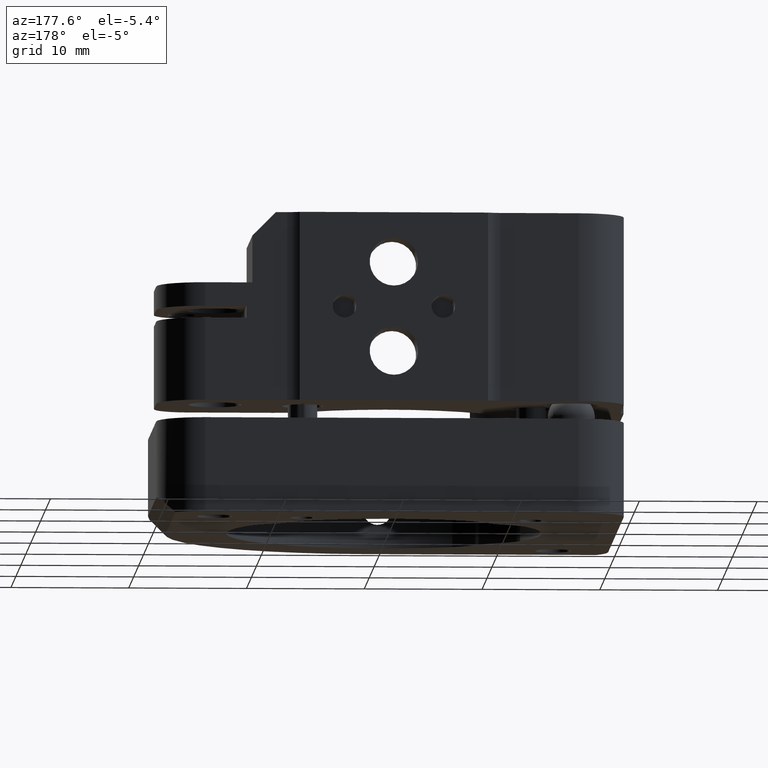
[diagram: clean part render]
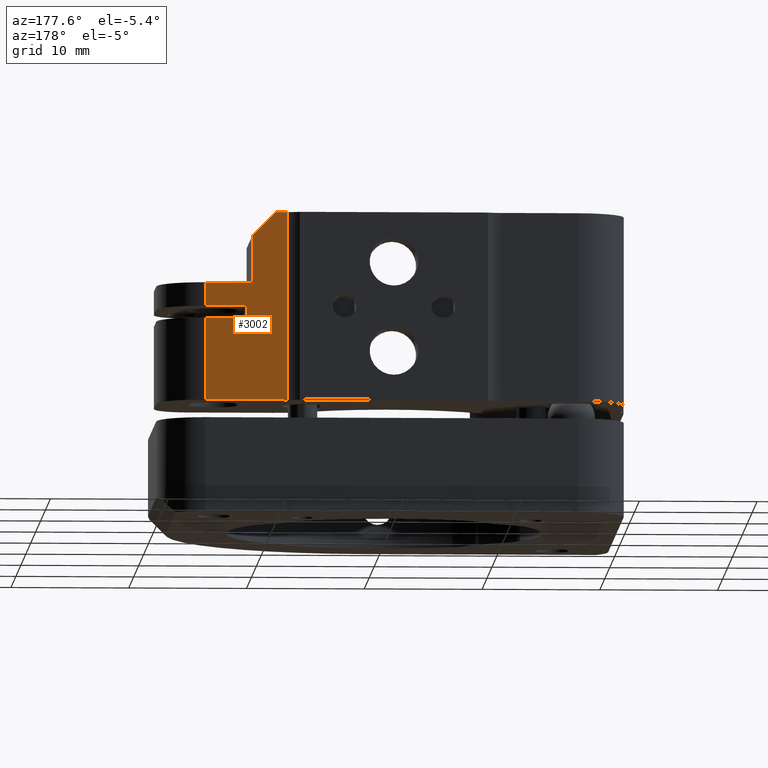
[diagram: same view with one face highlighted and labeled with its STEP entity id]
A machine part, auxiliary view. The second image highlights one B-rep face of the part: STEP entity #3002.
In plain terms, the highlighted planar face has unit normal (-0, 1, 0).
Its self-contained STEP definition (entity closure, byte-faithful):
#12 = CARTESIAN_POINT ( 'NONE',  ( 15.99999999999930012, 19.70000000000069917, 9.500000000000000000 ) ) ;
#83 = CARTESIAN_POINT ( 'NONE',  ( 9.053565375284520655, 19.70000000000025508, 9.500000000000000000 ) ) ;
#156 = EDGE_CURVE ( 'NONE', #2871, #2138, #860, .T. ) ;
#191 = EDGE_CURVE ( 'NONE', #3428, #470, #257, .T. ) ;
#226 = EDGE_CURVE ( 'NONE', #4362, #2138, #337, .T. ) ;
#257 = LINE ( 'NONE', #1763, #2584 ) ;
#337 = LINE ( 'NONE', #4319, #2976 ) ;
#403 = CARTESIAN_POINT ( 'NONE',  ( 12.50000000000020073, 19.70000000000059970, 16.50000000000000000 ) ) ;
#418 = ORIENTED_EDGE ( 'NONE', *, *, #4054, .T. ) ;
#437 = LINE ( 'NONE', #3128, #2817 ) ;
#470 = VERTEX_POINT ( 'NONE', #2547 ) ;
#498 = LINE ( 'NONE', #1952, #4333 ) ;
#543 = EDGE_CURVE ( 'NONE', #3785, #4362, #718, .T. ) ;
#611 = LINE ( 'NONE', #3244, #2349 ) ;
#718 = LINE ( 'NONE', #745, #3208 ) ;
#745 = CARTESIAN_POINT ( 'NONE',  ( 17.60000005889900265, 19.70000000000029772, 9.500000000000000000 ) ) ;
#794 = VECTOR ( 'NONE', #1313, 1000.000000000000000 ) ;
#806 = VECTOR ( 'NONE', #2675, 1000.000000000000000 ) ;
#808 = EDGE_CURVE ( 'NONE', #470, #3007, #611, .T. ) ;
#860 = LINE ( 'NONE', #4656, #794 ) ;
#965 = CARTESIAN_POINT ( 'NONE',  ( 12.00000000000009948, 19.70000000000044338, 19.50000000000000000 ) ) ;
#968 = ORIENTED_EDGE ( 'NONE', *, *, #191, .T. ) ;
#1047 = CARTESIAN_POINT ( 'NONE',  ( 12.00000000000000000, 19.70000000000044338, 9.500000000000000000 ) ) ;
#1081 = DIRECTION ( 'NONE',  ( 1.000000000000000000, -0.000000000000000000, 0.000000000000000000 ) ) ;
#1092 = ORIENTED_EDGE ( 'NONE', *, *, #543, .F. ) ;
#1128 = DIRECTION ( 'NONE',  ( -0.000000000000000000, -0.000000000000000000, -1.000000000000000000 ) ) ;
#1211 = VERTEX_POINT ( 'NONE', #2114 ) ;
#1251 = VERTEX_POINT ( 'NONE', #2795 ) ;
#1284 = DIRECTION ( 'NONE',  ( 0.7071067811865932029, 4.538548513382488983E-14, -0.7071067811865018315 ) ) ;
#1313 = DIRECTION ( 'NONE',  ( 1.000000000000000000, 6.393052462770349387E-14, -0.000000000000000000 ) ) ;
#1375 = EDGE_CURVE ( 'NONE', #1211, #3561, #1405, .T. ) ;
#1405 = LINE ( 'NONE', #1047, #3304 ) ;
#1517 = LINE ( 'NONE', #403, #2043 ) ;
#1546 = EDGE_CURVE ( 'NONE', #3785, #4284, #1914, .T. ) ;
#1560 = ORIENTED_EDGE ( 'NONE', *, *, #226, .F. ) ;
#1763 = CARTESIAN_POINT ( 'NONE',  ( 15.99999999999930012, 19.70000000000069917, 9.500000000000000000 ) ) ;
#1811 = CARTESIAN_POINT ( 'NONE',  ( 9.053565375284520655, 19.70000000000037588, 25.50000000000000355 ) ) ;
#1865 = CARTESIAN_POINT ( 'NONE',  ( 12.50000000000020073, 19.70000000000051799, 17.50000000000000000 ) ) ;
#1914 = LINE ( 'NONE', #83, #806 ) ;
#1919 = ORIENTED_EDGE ( 'NONE', *, *, #156, .T. ) ;
#1952 = CARTESIAN_POINT ( 'NONE',  ( 9.999999999999740652, 19.70000000000031548, 25.50000000000000355 ) ) ;
#2043 = VECTOR ( 'NONE', #1128, 1000.000000000000000 ) ;
#2078 = AXIS2_PLACEMENT_3D ( 'NONE', #12, #4497, #2964 ) ;
#2086 = ORIENTED_EDGE ( 'NONE', *, *, #808, .T. ) ;
#2114 = CARTESIAN_POINT ( 'NONE',  ( 11.99999999999998934, 19.70000000000045404, 23.50000000000000000 ) ) ;
#2138 = VERTEX_POINT ( 'NONE', #4659 ) ;
#2197 = ORIENTED_EDGE ( 'NONE', *, *, #2626, .F. ) ;
#2349 = VECTOR ( 'NONE', #3928, 1000.000000000000000 ) ;
#2524 = DIRECTION ( 'NONE',  ( 0.000000000000000000, 0.000000000000000000, 1.000000000000000000 ) ) ;
#2535 = DIRECTION ( 'NONE',  ( -0.000000000000000000, -0.000000000000000000, -1.000000000000000000 ) ) ;
#2547 = CARTESIAN_POINT ( 'NONE',  ( 15.99999999999917044, 19.70000000000069917, 17.50000000000000000 ) ) ;
#2584 = VECTOR ( 'NONE', #2836, 1000.000000000000000 ) ;
#2624 = CARTESIAN_POINT ( 'NONE',  ( 15.99999999999930012, 19.70000000000069917, 19.50000000000000000 ) ) ;
#2626 = EDGE_CURVE ( 'NONE', #1251, #4284, #437, .T. ) ;
#2646 = FACE_OUTER_BOUND ( 'NONE', #2709, .T. ) ;
#2675 = DIRECTION ( 'NONE',  ( 0.000000000000000000, 0.000000000000000000, 1.000000000000000000 ) ) ;
#2709 = EDGE_LOOP ( 'NONE', ( #3008, #2876, #418, #968, #2086, #3300, #1919, #1560, #1092, #3023, #2197 ) ) ;
#2795 = CARTESIAN_POINT ( 'NONE',  ( 9.999999999999582556, 19.70000000000043627, 25.50000000000002132 ) ) ;
#2817 = VECTOR ( 'NONE', #3545, 1000.000000000000000 ) ;
#2836 = DIRECTION ( 'NONE',  ( -0.000000000000000000, -0.000000000000000000, -1.000000000000000000 ) ) ;
#2871 = VERTEX_POINT ( 'NONE', #2941 ) ;
#2876 = ORIENTED_EDGE ( 'NONE', *, *, #1375, .T. ) ;
#2941 = CARTESIAN_POINT ( 'NONE',  ( 12.50000000000020073, 19.70000000000051799, 16.50000000000000000 ) ) ;
#2964 = DIRECTION ( 'NONE',  ( -1.000000000000000000, -6.393052462770349387E-14, 0.000000000000000000 ) ) ;
#2976 = VECTOR ( 'NONE', #2524, 1000.000000000000000 ) ;
#3002 = ADVANCED_FACE ( 'NONE', ( #2646 ), #4478, .T. ) ;
#3007 = VERTEX_POINT ( 'NONE', #1865 ) ;
#3008 = ORIENTED_EDGE ( 'NONE', *, *, #3081, .T. ) ;
#3023 = ORIENTED_EDGE ( 'NONE', *, *, #1546, .T. ) ;
#3081 = EDGE_CURVE ( 'NONE', #1251, #1211, #498, .T. ) ;
#3128 = CARTESIAN_POINT ( 'NONE',  ( 15.99999999999930012, 19.70000000000049667, 25.50000000000000355 ) ) ;
#3152 = CARTESIAN_POINT ( 'NONE',  ( 9.053565375284520655, 19.70000000000027640, 9.500000000000000000 ) ) ;
#3208 = VECTOR ( 'NONE', #1081, 1000.000000000000000 ) ;
#3244 = CARTESIAN_POINT ( 'NONE',  ( 15.99999999999930012, 19.70000000000069917, 17.50000000000000000 ) ) ;
#3300 = ORIENTED_EDGE ( 'NONE', *, *, #4552, .T. ) ;
#3304 = VECTOR ( 'NONE', #2535, 1000.000000000000000 ) ;
#3326 = CARTESIAN_POINT ( 'NONE',  ( 15.99999999999917044, 19.70000000000069917, 19.50000000000000000 ) ) ;
#3428 = VERTEX_POINT ( 'NONE', #3326 ) ;
#3545 = DIRECTION ( 'NONE',  ( -1.000000000000000000, -0.000000000000000000, 0.000000000000000000 ) ) ;
#3561 = VERTEX_POINT ( 'NONE', #965 ) ;
#3750 = DIRECTION ( 'NONE',  ( 1.000000000000000000, 6.393052462770349387E-14, -0.000000000000000000 ) ) ;
#3774 = LINE ( 'NONE', #2624, #3875 ) ;
#3785 = VERTEX_POINT ( 'NONE', #3152 ) ;
#3875 = VECTOR ( 'NONE', #3750, 1000.000000000000000 ) ;
#3928 = DIRECTION ( 'NONE',  ( -1.000000000000000000, -6.393052462770349387E-14, 0.000000000000000000 ) ) ;
#4054 = EDGE_CURVE ( 'NONE', #3561, #3428, #3774, .T. ) ;
#4284 = VERTEX_POINT ( 'NONE', #1811 ) ;
#4319 = CARTESIAN_POINT ( 'NONE',  ( 15.99999999999930012, 19.70000000000069917, 9.500000000000000000 ) ) ;
#4333 = VECTOR ( 'NONE', #1284, 1000.000000000000227 ) ;
#4341 = CARTESIAN_POINT ( 'NONE',  ( 15.99999999999930012, 19.70000000000049667, 9.500000000000000000 ) ) ;
#4362 = VERTEX_POINT ( 'NONE', #4341 ) ;
#4478 = PLANE ( 'NONE',  #2078 ) ;
#4497 = DIRECTION ( 'NONE',  ( -6.393052462770349387E-14, 1.000000000000000000, 0.000000000000000000 ) ) ;
#4552 = EDGE_CURVE ( 'NONE', #3007, #2871, #1517, .T. ) ;
#4656 = CARTESIAN_POINT ( 'NONE',  ( 15.99999999999930012, 19.70000000000069917, 16.50000000000000000 ) ) ;
#4659 = CARTESIAN_POINT ( 'NONE',  ( 15.99999999999917044, 19.70000000000069917, 16.50000000000000000 ) ) ;